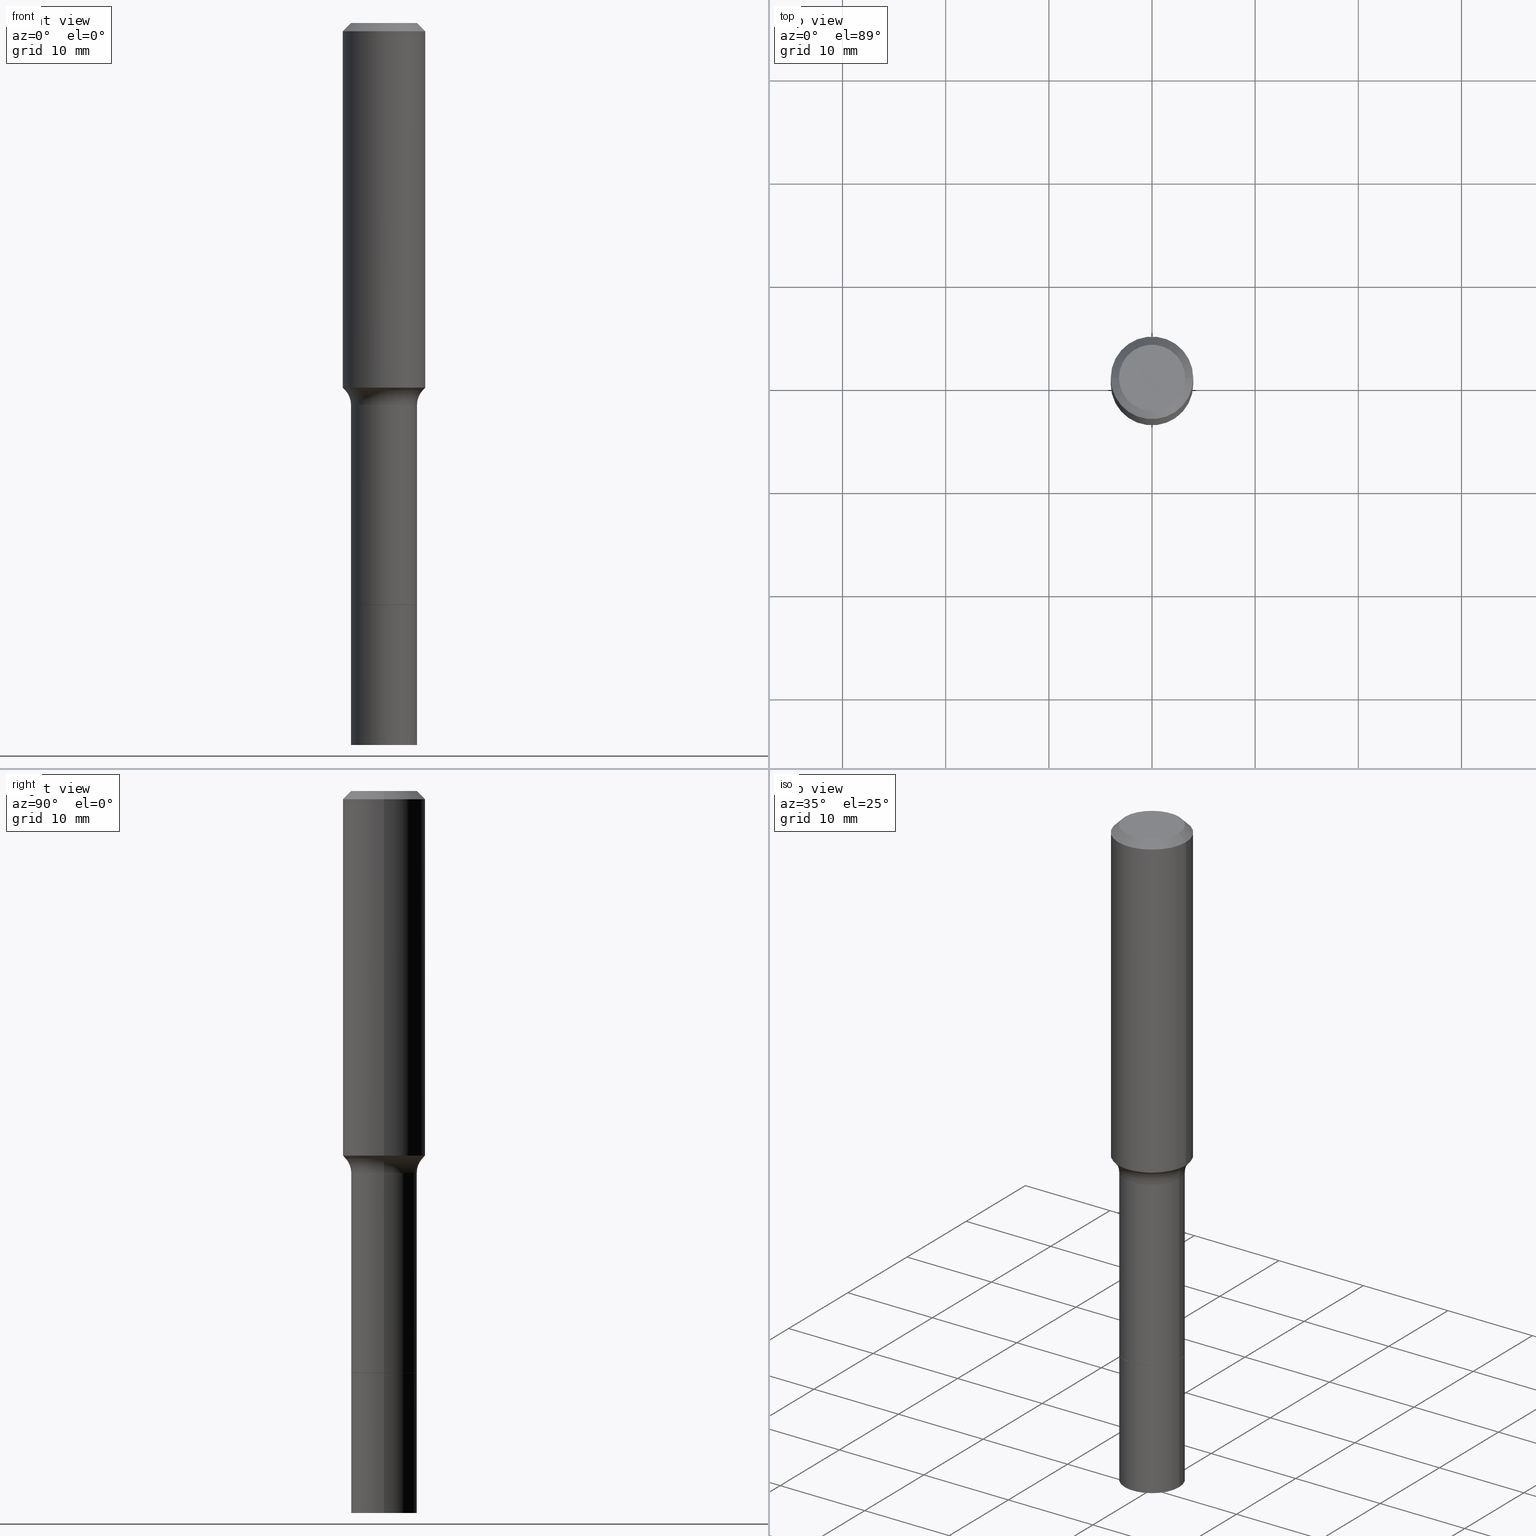
[diagram: canonical four-view strip — front | top / right | iso, engineering-drawing reading convention]
A machine part, canonical four-view strip (front | top / right | iso — engineering-drawing reading convention). The complete STEP part file that produces these views, byte-faithful:
ISO-10303-21;
HEADER;
FILE_DESCRIPTION (( 'STEP AP203' ),
    '1' );
FILE_NAME ('67110.STEP',
    '2025-04-01T15:28:23',
    ( '' ),
    ( '' ),
    'SwSTEP 2.0',
    'SolidWorks 2024',
    '' );
FILE_SCHEMA (( 'CONFIG_CONTROL_DESIGN' ));
ENDSEC;

DATA;
#1 = AXIS2_PLACEMENT_3D ( 'NONE', #72, #98, #418 ) ;
#2 = EDGE_LOOP ( 'NONE', ( #512, #404, #44, #168 ) ) ;
#3 = FACE_OUTER_BOUND ( 'NONE', #315, .T. ) ;
#4 = DIRECTION ( 'NONE',  ( 1.000000000000000000, -6.982962677686265922E-15, 4.876176775795935793E-29 ) ) ;
#5 = CIRCLE ( 'NONE', #122, 0.1474917038704662842 ) ;
#6 = CARTESIAN_POINT ( 'NONE',  ( -0.1260000000000000009, 9.348441284752484904E-16, 3.860086710906110326E-18 ) ) ;
#7 = CIRCLE ( 'NONE', #294, 0.1575000000000001676 ) ;
#8 = ADVANCED_FACE ( 'NONE', ( #338 ), #366, .T. ) ;
#9 = FACE_OUTER_BOUND ( 'NONE', #388, .T. ) ;
#10 = DIRECTION ( 'NONE',  ( 1.000000000000000000, -6.982962677686261977E-15, 0.000000000000000000 ) ) ;
#11 = ORGANIZATION ( 'UNSPECIFIED', 'UNSPECIFIED', '' ) ;
#12 = VERTEX_POINT ( 'NONE', #445 ) ;
#13 = DIRECTION ( 'NONE',  ( 1.000000000000000000, -6.982962677686265922E-15, 0.000000000000000000 ) ) ;
#14 = CARTESIAN_POINT ( 'NONE',  ( 0.000000000000000000, 0.000000000000000000, 0.000000000000000000 ) ) ;
#15 = APPROVAL_PERSON_ORGANIZATION ( #150, #507, #415 ) ;
#16 = APPROVAL ( #335, 'UNSPECIFIED' ) ;
#17 = CARTESIAN_POINT ( 'NONE',  ( 0.1259999999999999454, -8.798532973884691559E-16, 6.143982737502876745E-30 ) ) ;
#18 = DIRECTION ( 'NONE',  ( 1.000000000000000000, -6.982962677686261977E-15, 0.000000000000000000 ) ) ;
#19 = CLOSED_SHELL ( 'NONE', ( #296, #476, #371, #378, #191, #54, #506, #495, #465, #289, #439, #269, #143, #416 ) ) ;
#20 = DATE_TIME_ROLE ( 'creation_date' ) ;
#21 = AXIS2_PLACEMENT_3D ( 'NONE', #496, #67, #18 ) ;
#22 = DIRECTION ( 'NONE',  ( -1.000000000000000000, 6.982962677686265922E-15, -4.876176775795935793E-29 ) ) ;
#23 = DATE_AND_TIME ( #147, #274 ) ;
#24 = LOCAL_TIME ( 11, 28, 23.00000000000000000, #154 ) ;
#25 = DIRECTION ( 'NONE',  ( 1.000000000000000000, -6.982962677686267499E-15, 0.000000000000000000 ) ) ;
#26 =( NAMED_UNIT ( * ) SI_UNIT ( $, .STERADIAN. ) SOLID_ANGLE_UNIT ( ) );
#27 = CYLINDRICAL_SURFACE ( 'NONE', #162, 0.1259999999999999454 ) ;
#28 = CARTESIAN_POINT ( 'NONE',  ( 5.431141671656569525E-29, -7.754230905436741419E-15, -2.220899999999999874 ) ) ;
#29 = APPLICATION_PROTOCOL_DEFINITION ( 'international standard', 'config_control_design', 1994, #317 ) ;
#30 = EDGE_CURVE ( 'NONE', #169, #203, #278, .T. ) ;
#31 = DESIGN_CONTEXT ( 'detailed design', #317, 'design' ) ;
#32 = CIRCLE ( 'NONE', #461, 0.1260000000000001674 ) ;
#33 = APPROVAL_DATE_TIME ( #77, #507 ) ;
#34 = VECTOR ( 'NONE', #276, 39.37007874015748143 ) ;
#35 = CARTESIAN_POINT ( 'NONE',  ( 3.429379046498945031E-29, -4.896244398778191776E-15, -1.402340131195000117 ) ) ;
#36 = CONICAL_SURFACE ( 'NONE', #221, 0.1255000000000000004, 0.7853981633975507526 ) ;
#37 =( LENGTH_UNIT ( ) NAMED_UNIT ( * ) SI_UNIT ( $, .METRE. ) );
#38 = CC_DESIGN_DATE_AND_TIME_ASSIGNMENT ( #308, #190, ( #66 ) ) ;
#39 = FACE_OUTER_BOUND ( 'NONE', #517, .T. ) ;
#40 = APPLICATION_CONTEXT ( 'configuration controlled 3d designs of mechanical parts and assemblies' ) ;
#41 = AXIS2_PLACEMENT_3D ( 'NONE', #52, #217, #396 ) ;
#42 = ORIENTED_EDGE ( 'NONE', *, *, #196, .F. ) ;
#43 = VERTEX_POINT ( 'NONE', #248 ) ;
#44 = ORIENTED_EDGE ( 'NONE', *, *, #86, .T. ) ;
#45 = DIRECTION ( 'NONE',  ( -1.000000000000000000, 6.982962677686265922E-15, -4.876176775795935793E-29 ) ) ;
#46 = EDGE_CURVE ( 'NONE', #237, #245, #100, .T. ) ;
#47 = AXIS2_PLACEMENT_3D ( 'NONE', #94, #214, #4 ) ;
#48 = CIRCLE ( 'NONE', #231, 0.07999999999999993228 ) ;
#49 = EDGE_LOOP ( 'NONE', ( #355, #262 ) ) ;
#50 = DIRECTION ( 'NONE',  ( 1.000000000000000000, -6.982962677686262766E-15, 0.000000000000000000 ) ) ;
#51 = ORIENTED_EDGE ( 'NONE', *, *, #234, .T. ) ;
#52 = CARTESIAN_POINT ( 'NONE',  ( 5.431141671656569525E-29, -7.754230905436741419E-15, -2.220899999999999874 ) ) ;
#53 = CC_DESIGN_APPROVAL ( #312, ( #151 ) ) ;
#54 = ADVANCED_FACE ( 'NONE', ( #9 ), #295, .T. ) ;
#55 = CARTESIAN_POINT ( 'NONE',  ( 5.431141671656569525E-29, -7.754230905436741419E-15, -2.220899999999999874 ) ) ;
#56 = DIRECTION ( 'NONE',  ( -6.982962677686266711E-15, -1.000000000000000000, 3.491481338843145583E-15 ) ) ;
#57 = ORIENTED_EDGE ( 'NONE', *, *, #473, .T. ) ;
#58 = DIRECTION ( 'NONE',  ( -2.445468806185136877E-29, 3.491481338843145188E-15, 1.000000000000000000 ) ) ;
#59 = MANIFOLD_SOLID_BREP ( 'Body-Move/Copy2[1]', #459 ) ;
#60 = EDGE_LOOP ( 'NONE', ( #477, #501, #435, #177 ) ) ;
#61 = CARTESIAN_POINT ( 'NONE',  ( -0.1260000000000000009, -5.524328316606223241E-15, -2.220399999999999707 ) ) ;
#62 = EDGE_CURVE ( 'NONE', #380, #238, #107, .T. ) ;
#63 = ORIENTED_EDGE ( 'NONE', *, *, #486, .F. ) ;
#64 = CARTESIAN_POINT ( 'NONE',  ( -0.2059999999999999054, -3.623021126894772153E-15, -1.456899999999999862 ) ) ;
#65 = CALENDAR_DATE ( 2025, 1, 4 ) ;
#66 = SECURITY_CLASSIFICATION ( '', '', #260 ) ;
#67 = DIRECTION ( 'NONE',  ( -2.445468806185136597E-29, 3.491481338843145583E-15, 1.000000000000000000 ) ) ;
#68 = TOROIDAL_SURFACE ( 'NONE', #327, 0.2059999999999999054, 0.07999999999999993228 ) ;
#69 = DIRECTION ( 'NONE',  ( 0.000000000000000000, 0.000000000000000000, 1.000000000000000000 ) ) ;
#70 = PLANE ( 'NONE',  #306 ) ;
#71 = DATE_AND_TIME ( #266, #314 ) ;
#72 = CARTESIAN_POINT ( 'NONE',  ( 5.429918937253476724E-29, -7.752485164767320704E-15, -2.220399999999999707 ) ) ;
#73 = DIRECTION ( 'NONE',  ( 1.000000000000000000, -6.982962677686269077E-15, 0.000000000000000000 ) ) ;
#74 = EDGE_LOOP ( 'NONE', ( #275, #391, #470, #144 ) ) ;
#75 = APPROVAL_STATUS ( 'not_yet_approved' ) ;
#76 = CC_DESIGN_SECURITY_CLASSIFICATION ( #66, ( #151 ) ) ;
#77 = DATE_AND_TIME ( #205, #90 ) ;
#78 = CC_DESIGN_PERSON_AND_ORGANIZATION_ASSIGNMENT ( #264, #112, ( #209 ) ) ;
#79 = CARTESIAN_POINT ( 'NONE',  ( 0.1260000000000000009, -8.634084202825210772E-15, -2.220899999999999874 ) ) ;
#80 = APPROVAL_PERSON_ORGANIZATION ( #226, #312, #270 ) ;
#81 = FACE_OUTER_BOUND ( 'NONE', #351, .T. ) ;
#82 = ORIENTED_EDGE ( 'NONE', *, *, #170, .T. ) ;
#83 = AXIS2_PLACEMENT_3D ( 'NONE', #444, #359, #50 ) ;
#84 = ORIENTED_EDGE ( 'NONE', *, *, #93, .F. ) ;
#85 = ORIENTED_EDGE ( 'NONE', *, *, #344, .F. ) ;
#86 = EDGE_CURVE ( 'NONE', #164, #12, #148, .T. ) ;
#87 = LINE ( 'NONE', #485, #390 ) ;
#88 = EDGE_LOOP ( 'NONE', ( #329, #480, #463, #287 ) ) ;
#89 = DIRECTION ( 'NONE',  ( -2.445468806185136597E-29, 3.491481338843145583E-15, 1.000000000000000000 ) ) ;
#90 = LOCAL_TIME ( 11, 28, 23.00000000000000000, #158 ) ;
#91 = ORIENTED_EDGE ( 'NONE', *, *, #326, .F. ) ;
#92 = DIRECTION ( 'NONE',  ( 1.000000000000000000, -6.982962677686262766E-15, 0.000000000000000000 ) ) ;
#93 = EDGE_CURVE ( 'NONE', #203, #169, #425, .T. ) ;
#94 = CARTESIAN_POINT ( 'NONE',  ( 5.431141671656569525E-29, -7.754230905436741419E-15, -2.220899999999999874 ) ) ;
#95 = CARTESIAN_POINT ( 'NONE',  ( 0.1474917038704663119, -5.926173462174012285E-15, -1.402340131195000117 ) ) ;
#96 = DIRECTION ( 'NONE',  ( 1.000000000000000000, -6.982962677686265922E-15, 0.000000000000000000 ) ) ;
#97 = CARTESIAN_POINT ( 'NONE',  ( 0.1259999999999998899, -5.966592459949047611E-15, -1.456899999999999862 ) ) ;
#98 = DIRECTION ( 'NONE',  ( -2.445468806185136597E-29, 3.491481338843145583E-15, 1.000000000000000000 ) ) ;
#99 = CARTESIAN_POINT ( 'NONE',  ( 7.703226739483230474E-31, -1.099816621735598031E-16, -0.03150000000000020839 ) ) ;
#100 = CIRCLE ( 'NONE', #386, 0.1474917038704662842 ) ;
#101 = CARTESIAN_POINT ( 'NONE',  ( -0.1575000000000000011, -1.365271913957819338E-15, -0.03150000000000020839 ) ) ;
#102 = CARTESIAN_POINT ( 'NONE',  ( -0.1575000000000001676, -3.739666974564237215E-15, -1.391607547585026916 ) ) ;
#103 = DIRECTION ( 'NONE',  ( -2.445468806185136597E-29, 3.491481338843145583E-15, 1.000000000000000000 ) ) ;
#104 = EDGE_CURVE ( 'NONE', #245, #164, #408, .T. ) ;
#105 = PERSON_AND_ORGANIZATION ( #204, #11 ) ;
#106 = CC_DESIGN_APPROVAL ( #16, ( #209 ) ) ;
#107 = LINE ( 'NONE', #17, #345 ) ;
#108 = FACE_OUTER_BOUND ( 'NONE', #466, .T. ) ;
#109 = PERSON_AND_ORGANIZATION ( #204, #11 ) ;
#110 = DIRECTION ( 'NONE',  ( 1.000000000000000000, -6.982962677686266711E-15, 0.000000000000000000 ) ) ;
#111 = VECTOR ( 'NONE', #362, 39.37007874015748143 ) ;
#112 = PERSON_AND_ORGANIZATION_ROLE ( 'creator' ) ;
#113 = AXIS2_PLACEMENT_3D ( 'NONE', #253, #249, #45 ) ;
#114 = FACE_OUTER_BOUND ( 'NONE', #126, .T. ) ;
#115 = EDGE_CURVE ( 'NONE', #282, #380, #252, .T. ) ;
#116 = FACE_OUTER_BOUND ( 'NONE', #299, .T. ) ;
#117 = ORIENTED_EDGE ( 'NONE', *, *, #426, .F. ) ;
#118 = PERSON_AND_ORGANIZATION ( #204, #11 ) ;
#119 = APPROVAL_ROLE ( '' ) ;
#120 = DIRECTION ( 'NONE',  ( 1.000000000000000000, -6.982962677686265922E-15, 4.883557194083112340E-29 ) ) ;
#121 = EDGE_CURVE ( 'NONE', #401, #322, #186, .T. ) ;
#122 = AXIS2_PLACEMENT_3D ( 'NONE', #35, #340, #499 ) ;
#123 = ORIENTED_EDGE ( 'NONE', *, *, #457, .T. ) ;
#124 = ORIENTED_EDGE ( 'NONE', *, *, #309, .T. ) ;
#125 = CARTESIAN_POINT ( 'NONE',  ( -0.1575000000000000011, 9.898349595620272334E-16, -0.03150000000000020839 ) ) ;
#126 = EDGE_LOOP ( 'NONE', ( #129, #241, #423, #429 ) ) ;
#127 = AXIS2_PLACEMENT_3D ( 'NONE', #219, #292, #331 ) ;
#128 = EDGE_CURVE ( 'NONE', #12, #437, #491, .T. ) ;
#129 = ORIENTED_EDGE ( 'NONE', *, *, #121, .F. ) ;
#130 = SHAPE_DEFINITION_REPRESENTATION ( #200, #250 ) ;
#131 = VECTOR ( 'NONE', #348, 39.37007874015748143 ) ;
#132 = ORIENTED_EDGE ( 'NONE', *, *, #46, .F. ) ;
#133 = CARTESIAN_POINT ( 'NONE',  ( 0.2059999999999999054, -6.525229474163948475E-15, -1.456899999999999862 ) ) ;
#134 = ORIENTED_EDGE ( 'NONE', *, *, #232, .F. ) ;
#135 = DIRECTION ( 'NONE',  ( 1.000000000000000000, -6.982962677686265922E-15, 4.883557194083112340E-29 ) ) ;
#136 = CC_DESIGN_PERSON_AND_ORGANIZATION_ASSIGNMENT ( #109, #502, ( #66 ) ) ;
#137 = DIRECTION ( 'NONE',  ( 1.000000000000000000, -6.982962677686265922E-15, 0.000000000000000000 ) ) ;
#138 = CARTESIAN_POINT ( 'NONE',  ( -4.719860820353096954E-47, 6.738710358733626979E-33, 1.930043355456227940E-18 ) ) ;
#139 = CARTESIAN_POINT ( 'NONE',  ( -9.439721640706193907E-47, 1.347742071746725396E-32, 3.860086710912455880E-18 ) ) ;
#140 = CARTESIAN_POINT ( 'NONE',  ( 6.739467482965618232E-29, -9.622173421717824390E-15, -2.755900000000000016 ) ) ;
#141 = CARTESIAN_POINT ( 'NONE',  ( -0.1259999999999999454, 8.952838470577258461E-16, -6.197858213721179206E-30 ) ) ;
#142 = CARTESIAN_POINT ( 'NONE',  ( 5.431141671656569525E-29, -7.754230905436741419E-15, -2.220899999999999874 ) ) ;
#143 = ADVANCED_FACE ( 'NONE', ( #333 ), #443, .F. ) ;
#144 = ORIENTED_EDGE ( 'NONE', *, *, #202, .F. ) ;
#145 = AXIS2_PLACEMENT_3D ( 'NONE', #55, #222, #96 ) ;
#146 = CARTESIAN_POINT ( 'NONE',  ( 7.703226739483230474E-31, -1.099816621735598031E-16, -0.03150000000000020839 ) ) ;
#147 = CALENDAR_DATE ( 2025, 1, 4 ) ;
#148 = LINE ( 'NONE', #179, #230 ) ;
#149 = TOROIDAL_SURFACE ( 'NONE', #471, 0.2059999999999999054, 0.07999999999999993228 ) ;
#150 = PERSON_AND_ORGANIZATION ( #204, #11 ) ;
#151 = PRODUCT_DEFINITION_FORMATION_WITH_SPECIFIED_SOURCE ( 'ANY', '', #166, .NOT_KNOWN. ) ;
#152 = DIRECTION ( 'NONE',  ( -2.445468806185136597E-29, 3.491481338843145583E-15, 1.000000000000000000 ) ) ;
#153 = VERTEX_POINT ( 'NONE', #102 ) ;
#154 = COORDINATED_UNIVERSAL_TIME_OFFSET ( 5, 0, .BEHIND. ) ;
#155 = CC_DESIGN_PERSON_AND_ORGANIZATION_ASSIGNMENT ( #105, #343, ( #151 ) ) ;
#156 = DIRECTION ( 'NONE',  ( -2.445468806185136597E-29, 3.491481338843145583E-15, 1.000000000000000000 ) ) ;
#157 = CIRCLE ( 'NONE', #41, 0.1255000000000000004 ) ;
#158 = COORDINATED_UNIVERSAL_TIME_OFFSET ( 5, 0, .BEHIND. ) ;
#159 = DIRECTION ( 'NONE',  ( 1.000000000000000000, -6.982962677686265922E-15, 4.876176775795935793E-29 ) ) ;
#160 = FACE_OUTER_BOUND ( 'NONE', #74, .T. ) ;
#161 = CARTESIAN_POINT ( 'NONE',  ( 0.000000000000000000, 0.000000000000000000, 0.000000000000000000 ) ) ;
#162 = AXIS2_PLACEMENT_3D ( 'NONE', #161, #427, #159 ) ;
#163 = CARTESIAN_POINT ( 'NONE',  ( -0.1260000000000000009, -7.792918316519555875E-15, -2.220899999999999874 ) ) ;
#164 = VERTEX_POINT ( 'NONE', #256 ) ;
#165 = LINE ( 'NONE', #310, #268 ) ;
#166 = PRODUCT ( '67110', '67110', '', ( #492 ) ) ;
#167 = AXIS2_PLACEMENT_3D ( 'NONE', #383, #156, #225 ) ;
#168 = ORIENTED_EDGE ( 'NONE', *, *, #309, .F. ) ;
#169 = VERTEX_POINT ( 'NONE', #410 ) ;
#170 = EDGE_CURVE ( 'NONE', #245, #237, #5, .T. ) ;
#171 = VERTEX_POINT ( 'NONE', #163 ) ;
#172 = CONICAL_SURFACE ( 'NONE', #318, 0.1255000000000000004, 0.7853981633975507526 ) ;
#173 = ORIENTED_EDGE ( 'NONE', *, *, #344, .T. ) ;
#174 = DIRECTION ( 'NONE',  ( 1.000000000000000000, -6.982962677686267499E-15, 0.000000000000000000 ) ) ;
#175 = AXIS2_PLACEMENT_3D ( 'NONE', #64, #187, #342 ) ;
#176 = EDGE_CURVE ( 'NONE', #361, #171, #464, .T. ) ;
#177 = ORIENTED_EDGE ( 'NONE', *, *, #273, .F. ) ;
#178 = DIRECTION ( 'NONE',  ( 1.000000000000000000, -6.982962677686267499E-15, 0.000000000000000000 ) ) ;
#179 = CARTESIAN_POINT ( 'NONE',  ( 0.1575000000000000844, -1.099816621735587677E-15, 7.679978421878603638E-30 ) ) ;
#180 = LINE ( 'NONE', #288, #111 ) ;
#181 = DIRECTION ( 'NONE',  ( 0.6819983600624991427, -2.208861293262481719E-15, 0.7313537016191699047 ) ) ;
#182 = DIRECTION ( 'NONE',  ( -2.445468806185136597E-29, 3.491481338843145583E-15, 1.000000000000000000 ) ) ;
#183 = DIRECTION ( 'NONE',  ( -2.445468806185136877E-29, 3.491481338843145188E-15, 1.000000000000000000 ) ) ;
#184 = CARTESIAN_POINT ( 'NONE',  ( 3.403132848070981599E-29, -4.858771783386396397E-15, -1.391607547585026916 ) ) ;
#185 = EDGE_CURVE ( 'NONE', #322, #238, #224, .T. ) ;
#186 = LINE ( 'NONE', #141, #208 ) ;
#187 = DIRECTION ( 'NONE',  ( 7.105427357601001859E-15, 1.000000000000000000, -3.491481338843145583E-15 ) ) ;
#188 = DIRECTION ( 'NONE',  ( 1.000000000000000000, -6.982962677686265922E-15, 4.876281427513067258E-29 ) ) ;
#189 = LINE ( 'NONE', #265, #131 ) ;
#190 = DATE_TIME_ROLE ( 'classification_date' ) ;
#191 = ADVANCED_FACE ( 'NONE', ( #81 ), #68, .F. ) ;
#192 = FACE_OUTER_BOUND ( 'NONE', #88, .T. ) ;
#193 = CARTESIAN_POINT ( 'NONE',  ( 5.431141671656569525E-29, -7.754230905436741419E-15, -2.220899999999999874 ) ) ;
#194 = CYLINDRICAL_SURFACE ( 'NONE', #167, 0.1575000000000000844 ) ;
#195 = DIRECTION ( 'NONE',  ( -2.445468806185136597E-29, 3.491481338843145583E-15, 1.000000000000000000 ) ) ;
#196 = EDGE_CURVE ( 'NONE', #169, #12, #180, .T. ) ;
#197 = APPROVAL_PERSON_ORGANIZATION ( #505, #16, #119 ) ;
#198 = ORIENTED_EDGE ( 'NONE', *, *, #234, .F. ) ;
#199 = CARTESIAN_POINT ( 'NONE',  ( 7.703226739483230474E-31, -1.099816621735598031E-16, -0.03150000000000020839 ) ) ;
#200 = PRODUCT_DEFINITION_SHAPE ( 'NONE', 'NONE',  #209 ) ;
#201 = ORIENTED_EDGE ( 'NONE', *, *, #196, .T. ) ;
#202 = EDGE_CURVE ( 'NONE', #277, #515, #87, .T. ) ;
#203 = VERTEX_POINT ( 'NONE', #6 ) ;
#204 = PERSON ( 'UNSPECIFIED', 'UNSPECIFIED', 'UNSPECIFIED', ('UNSPECIFIED'), ('UNSPECIFIED'), ('UNSPECIFIED') ) ;
#205 = CALENDAR_DATE ( 2025, 1, 4 ) ;
#206 = ORIENTED_EDGE ( 'NONE', *, *, #393, .T. ) ;
#207 = FACE_OUTER_BOUND ( 'NONE', #49, .T. ) ;
#208 = VECTOR ( 'NONE', #406, 39.37007874015748143 ) ;
#209 = PRODUCT_DEFINITION ( 'UNKNOWN', '', #151, #31 ) ;
#210 = ORIENTED_EDGE ( 'NONE', *, *, #115, .T. ) ;
#211 = DIRECTION ( 'NONE',  ( -0.6819983600624991427, 7.399397606724289732E-15, 0.7313537016191699047 ) ) ;
#212 = EDGE_LOOP ( 'NONE', ( #91, #134 ) ) ;
#213 = CARTESIAN_POINT ( 'NONE',  ( -0.1260000000000001674, -7.792918316519555875E-15, -2.755900000000000016 ) ) ;
#214 = DIRECTION ( 'NONE',  ( -2.438088387897960049E-29, 3.491481338843145188E-15, 1.000000000000000000 ) ) ;
#215 = CARTESIAN_POINT ( 'NONE',  ( 5.431141671656569525E-29, -7.754230905436741419E-15, -2.220899999999999874 ) ) ;
#216 = CARTESIAN_POINT ( 'NONE',  ( 3.429379046498945031E-29, -4.896244398778191776E-15, -1.402340131195000117 ) ) ;
#217 = DIRECTION ( 'NONE',  ( -2.445468806185136597E-29, 3.491481338843145583E-15, 1.000000000000000000 ) ) ;
#218 = EDGE_CURVE ( 'NONE', #515, #171, #304, .T. ) ;
#219 = CARTESIAN_POINT ( 'NONE',  ( -9.439721640706193907E-47, 1.347742071746725396E-32, 3.860086710912455880E-18 ) ) ;
#220 = CYLINDRICAL_SURFACE ( 'NONE', #411, 0.1260000000000000842 ) ;
#221 = AXIS2_PLACEMENT_3D ( 'NONE', #28, #103, #25 ) ;
#222 = DIRECTION ( 'NONE',  ( -2.445468806185136597E-29, 3.491481338843145583E-15, 1.000000000000000000 ) ) ;
#223 = CC_DESIGN_PERSON_AND_ORGANIZATION_ASSIGNMENT ( #497, #453, ( #151 ) ) ;
#224 = CIRCLE ( 'NONE', #508, 0.1259999999999998899 ) ;
#225 = DIRECTION ( 'NONE',  ( 1.000000000000000000, -6.982962677686267499E-15, 4.876176775795936353E-29 ) ) ;
#226 = PERSON_AND_ORGANIZATION ( #204, #11 ) ;
#227 = FACE_OUTER_BOUND ( 'NONE', #285, .T. ) ;
#228 = FACE_OUTER_BOUND ( 'NONE', #392, .T. ) ;
#229 = APPLICATION_PROTOCOL_DEFINITION ( 'international standard', 'config_control_design', 1994, #40 ) ;
#230 = VECTOR ( 'NONE', #451, 39.37007874015748143 ) ;
#231 = AXIS2_PLACEMENT_3D ( 'NONE', #133, #56, #364 ) ;
#232 = EDGE_CURVE ( 'NONE', #43, #282, #157, .T. ) ;
#233 = CIRCLE ( 'NONE', #1, 0.1260000000000000009 ) ;
#234 = EDGE_CURVE ( 'NONE', #171, #515, #328, .T. ) ;
#235 = ORIENTED_EDGE ( 'NONE', *, *, #426, .T. ) ;
#236 = AXIS2_PLACEMENT_3D ( 'NONE', #142, #89, #174 ) ;
#237 = VERTEX_POINT ( 'NONE', #446 ) ;
#238 = VERTEX_POINT ( 'NONE', #97 ) ;
#239 = PLANE ( 'NONE',  #113 ) ;
#240 = LOCAL_TIME ( 11, 28, 23.00000000000000000, #413 ) ;
#241 = ORIENTED_EDGE ( 'NONE', *, *, #409, .T. ) ;
#242 = LINE ( 'NONE', #483, #514 ) ;
#243 = VECTOR ( 'NONE', #305, 39.37007874015748143 ) ;
#244 = CIRCLE ( 'NONE', #21, 0.1260000000000001674 ) ;
#245 = VERTEX_POINT ( 'NONE', #95 ) ;
#246 = CARTESIAN_POINT ( 'NONE',  ( -0.1259999999999998899, -5.524328316606224029E-15, -1.456899999999999862 ) ) ;
#247 = AXIS2_PLACEMENT_3D ( 'NONE', #334, #379, #300 ) ;
#248 = CARTESIAN_POINT ( 'NONE',  ( -0.1255000000000000004, -6.859850544883704876E-15, -2.220899999999999874 ) ) ;
#249 = DIRECTION ( 'NONE',  ( 2.438088387897960049E-29, -3.491481338843145188E-15, -1.000000000000000000 ) ) ;
#250 = ADVANCED_BREP_SHAPE_REPRESENTATION ( '67110', ( #59, #394, #258 ), #498 ) ;
#251 = EDGE_CURVE ( 'NONE', #277, #361, #32, .T. ) ;
#252 = LINE ( 'NONE', #290, #433 ) ;
#253 = CARTESIAN_POINT ( 'NONE',  ( 6.739467482965618232E-29, -9.622173421717824390E-15, -2.755900000000000016 ) ) ;
#254 = DIRECTION ( 'NONE',  ( -2.445468806185136597E-29, 3.491481338843145583E-15, 1.000000000000000000 ) ) ;
#255 = CARTESIAN_POINT ( 'NONE',  ( 3.562803503731125923E-29, -5.086739162560578258E-15, -1.456899999999999862 ) ) ;
#256 = CARTESIAN_POINT ( 'NONE',  ( 0.1575000000000001676, -5.958588405121984666E-15, -1.391607547585026916 ) ) ;
#257 = FACE_OUTER_BOUND ( 'NONE', #313, .T. ) ;
#258 = AXIS2_PLACEMENT_3D ( 'NONE', #14, #69, #462 ) ;
#259 = CONICAL_SURFACE ( 'NONE', #321, 0.1474917038704662842, 0.7504915783575625277 ) ;
#260 = SECURITY_CLASSIFICATION_LEVEL ( 'unclassified' ) ;
#261 = ADVANCED_FACE ( 'NONE', ( #207 ), #239, .T. ) ;
#262 = ORIENTED_EDGE ( 'NONE', *, *, #393, .F. ) ;
#263 = DIRECTION ( 'NONE',  ( 2.438088387897960049E-29, -3.491481338843145188E-15, -1.000000000000000000 ) ) ;
#264 = PERSON_AND_ORGANIZATION ( #204, #11 ) ;
#265 = CARTESIAN_POINT ( 'NONE',  ( -0.1255000000000000004, -6.862499772057815288E-15, -2.220899999999999874 ) ) ;
#266 = CALENDAR_DATE ( 2025, 1, 4 ) ;
#267 =( NAMED_UNIT ( * ) PLANE_ANGLE_UNIT ( ) SI_UNIT ( $, .RADIAN. ) );
#268 = VECTOR ( 'NONE', #467, 39.37007874015748143 ) ;
#269 = ADVANCED_FACE ( 'NONE', ( #3 ), #330, .F. ) ;
#270 = APPROVAL_ROLE ( '' ) ;
#271 = CARTESIAN_POINT ( 'NONE',  ( -0.1260000000000000842, -6.858947058379013600E-15, -2.220899999999999874 ) ) ;
#272 = AXIS2_PLACEMENT_3D ( 'NONE', #99, #254, #137 ) ;
#273 = EDGE_CURVE ( 'NONE', #153, #164, #347, .T. ) ;
#274 = LOCAL_TIME ( 11, 28, 23.00000000000000000, #385 ) ;
#275 = ORIENTED_EDGE ( 'NONE', *, *, #251, .T. ) ;
#276 = DIRECTION ( 'NONE',  ( -0.7071067811865450192, 2.468850131082230634E-15, -0.7071067811865500152 ) ) ;
#277 = VERTEX_POINT ( 'NONE', #516 ) ;
#278 = CIRCLE ( 'NONE', #127, 0.1260000000000000009 ) ;
#279 = AXIS2_PLACEMENT_3D ( 'NONE', #323, #356, #488 ) ;
#280 = EDGE_LOOP ( 'NONE', ( #500, #206, #509, #198 ) ) ;
#281 = AXIS2_PLACEMENT_3D ( 'NONE', #146, #504, #490 ) ;
#282 = VERTEX_POINT ( 'NONE', #407 ) ;
#283 = CC_DESIGN_PERSON_AND_ORGANIZATION_ASSIGNMENT ( #118, #421, ( #166 ) ) ;
#284 = DIRECTION ( 'NONE',  ( -2.445468806185136597E-29, 3.491481338843145583E-15, 1.000000000000000000 ) ) ;
#285 = EDGE_LOOP ( 'NONE', ( #316, #489, #173, #123 ) ) ;
#286 = DIRECTION ( 'NONE',  ( -2.445468806185136597E-29, 3.491481338843145583E-15, 1.000000000000000000 ) ) ;
#287 = ORIENTED_EDGE ( 'NONE', *, *, #86, .F. ) ;
#288 = CARTESIAN_POINT ( 'NONE',  ( 0.1575000000000000011, -1.190510096822576026E-15, -0.03150000000000020839 ) ) ;
#289 = ADVANCED_FACE ( 'NONE', ( #518 ), #402, .T. ) ;
#290 = CARTESIAN_POINT ( 'NONE',  ( 0.1255000000000000004, -8.630592721486367765E-15, -2.220899999999999874 ) ) ;
#291 = DIRECTION ( 'NONE',  ( -2.445468806185136597E-29, 3.491481338843145583E-15, 1.000000000000000000 ) ) ;
#292 = DIRECTION ( 'NONE',  ( -2.445468806185136597E-29, 3.491481338843145583E-15, 1.000000000000000000 ) ) ;
#293 = DIRECTION ( 'NONE',  ( -1.000000000000000000, 6.982962677686265922E-15, -4.876176775795935793E-29 ) ) ;
#294 = AXIS2_PLACEMENT_3D ( 'NONE', #398, #286, #441 ) ;
#295 = CYLINDRICAL_SURFACE ( 'NONE', #376, 0.1259999999999999454 ) ;
#296 = ADVANCED_FACE ( 'NONE', ( #438 ), #172, .T. ) ;
#297 = CARTESIAN_POINT ( 'NONE',  ( 3.562803503731125923E-29, -5.086739162560578258E-15, -1.456899999999999862 ) ) ;
#298 = APPROVAL_DATE_TIME ( #23, #312 ) ;
#299 = EDGE_LOOP ( 'NONE', ( #353, #51 ) ) ;
#300 = DIRECTION ( 'NONE',  ( 1.000000000000000000, -6.982962677686262766E-15, 0.000000000000000000 ) ) ;
#301 = APPROVAL_STATUS ( 'not_yet_approved' ) ;
#302 = FACE_OUTER_BOUND ( 'NONE', #60, .T. ) ;
#303 = ORIENTED_EDGE ( 'NONE', *, *, #432, .T. ) ;
#304 = CIRCLE ( 'NONE', #83, 0.1260000000000000009 ) ;
#305 = DIRECTION ( 'NONE',  ( -2.445468806185136877E-29, 3.491481338843145188E-15, 1.000000000000000000 ) ) ;
#306 = AXIS2_PLACEMENT_3D ( 'NONE', #193, #263, #22 ) ;
#307 = DIRECTION ( 'NONE',  ( -2.445468806185136597E-29, 3.491481338843145583E-15, 1.000000000000000000 ) ) ;
#308 = DATE_AND_TIME ( #65, #240 ) ;
#309 = EDGE_CURVE ( 'NONE', #437, #12, #493, .T. ) ;
#310 = CARTESIAN_POINT ( 'NONE',  ( -0.1575000000000000844, 1.119104808822158392E-15, -7.747322767151481189E-30 ) ) ;
#311 = ORIENTED_EDGE ( 'NONE', *, *, #104, .F. ) ;
#312 = APPROVAL ( #75, 'UNSPECIFIED' ) ;
#313 = EDGE_LOOP ( 'NONE', ( #82, #372, #472, #311 ) ) ;
#314 = LOCAL_TIME ( 11, 28, 23.00000000000000000, #456 ) ;
#315 = EDGE_LOOP ( 'NONE', ( #436, #319 ) ) ;
#316 = ORIENTED_EDGE ( 'NONE', *, *, #432, .F. ) ;
#317 = APPLICATION_CONTEXT ( 'configuration controlled 3d designs of mechanical parts and assemblies' ) ;
#318 = AXIS2_PLACEMENT_3D ( 'NONE', #332, #284, #178 ) ;
#319 = ORIENTED_EDGE ( 'NONE', *, *, #30, .T. ) ;
#320 = DIRECTION ( 'NONE',  ( -2.445468806185136597E-29, 3.491481338843145583E-15, 1.000000000000000000 ) ) ;
#321 = AXIS2_PLACEMENT_3D ( 'NONE', #452, #458, #110 ) ;
#322 = VERTEX_POINT ( 'NONE', #246 ) ;
#323 = CARTESIAN_POINT ( 'NONE',  ( 7.703226739483230474E-31, -1.099816621735598031E-16, -0.03150000000000020839 ) ) ;
#324 = DIRECTION ( 'NONE',  ( -2.445468806185136597E-29, 3.491481338843145583E-15, 1.000000000000000000 ) ) ;
#325 = CARTESIAN_POINT ( 'NONE',  ( 0.000000000000000000, 0.000000000000000000, 0.000000000000000000 ) ) ;
#326 = EDGE_CURVE ( 'NONE', #282, #43, #450, .T. ) ;
#327 = AXIS2_PLACEMENT_3D ( 'NONE', #255, #370, #135 ) ;
#328 = CIRCLE ( 'NONE', #468, 0.1260000000000000009 ) ;
#329 = ORIENTED_EDGE ( 'NONE', *, *, #360, .T. ) ;
#330 = PLANE ( 'NONE',  #434 ) ;
#331 = DIRECTION ( 'NONE',  ( 1.000000000000000000, -6.982962677686265922E-15, 4.876281427513067258E-29 ) ) ;
#332 = CARTESIAN_POINT ( 'NONE',  ( 5.431141671656569525E-29, -7.754230905436741419E-15, -2.220899999999999874 ) ) ;
#333 = FACE_OUTER_BOUND ( 'NONE', #212, .T. ) ;
#334 = CARTESIAN_POINT ( 'NONE',  ( 5.429918937253476724E-29, -7.752485164767320704E-15, -2.220399999999999707 ) ) ;
#335 = APPROVAL_STATUS ( 'not_yet_approved' ) ;
#336 = UNCERTAINTY_MEASURE_WITH_UNIT (LENGTH_MEASURE( 1.000000000000000082E-05 ), #424, 'distance_accuracy_value', 'NONE');
#337 = CONICAL_SURFACE ( 'NONE', #399, 0.1474917038704662842, 0.7504915783575625277 ) ;
#338 = FACE_OUTER_BOUND ( 'NONE', #280, .T. ) ;
#339 = DATE_AND_TIME ( #375, #24 ) ;
#340 = DIRECTION ( 'NONE',  ( -2.445468806185136597E-29, 3.491481338843145583E-15, 1.000000000000000000 ) ) ;
#341 = DIRECTION ( 'NONE',  ( -2.445468806185136597E-29, 3.491481338843145583E-15, 1.000000000000000000 ) ) ;
#342 = DIRECTION ( 'NONE',  ( -1.000000000000000000, 7.105427357601005014E-15, 0.000000000000000000 ) ) ;
#343 = PERSON_AND_ORGANIZATION_ROLE ( 'creator' ) ;
#344 = EDGE_CURVE ( 'NONE', #245, #238, #48, .T. ) ;
#345 = VECTOR ( 'NONE', #183, 39.37007874015748143 ) ;
#346 = DIRECTION ( 'NONE',  ( -2.445468806185136597E-29, 3.491481338843145583E-15, 1.000000000000000000 ) ) ;
#347 = CIRCLE ( 'NONE', #377, 0.1575000000000001676 ) ;
#348 = DIRECTION ( 'NONE',  ( -0.7071067811866199593, 7.493145998870616062E-15, 0.7071067811864750752 ) ) ;
#349 = ORIENTED_EDGE ( 'NONE', *, *, #62, .F. ) ;
#350 = LENGTH_MEASURE_WITH_UNIT ( LENGTH_MEASURE( 0.02539999999999999897 ), #37 );
#351 = EDGE_LOOP ( 'NONE', ( #132, #303, #440, #85 ) ) ;
#352 = ORIENTED_EDGE ( 'NONE', *, *, #121, .T. ) ;
#353 = ORIENTED_EDGE ( 'NONE', *, *, #218, .T. ) ;
#354 = EDGE_CURVE ( 'NONE', #237, #153, #242, .T. ) ;
#355 = ORIENTED_EDGE ( 'NONE', *, *, #251, .F. ) ;
#356 = DIRECTION ( 'NONE',  ( -2.445468806185136597E-29, 3.491481338843145583E-15, 1.000000000000000000 ) ) ;
#357 = VECTOR ( 'NONE', #181, 39.37007874015748143 ) ;
#358 = ORIENTED_EDGE ( 'NONE', *, *, #473, .F. ) ;
#359 = DIRECTION ( 'NONE',  ( -2.445468806185136597E-29, 3.491481338843145583E-15, 1.000000000000000000 ) ) ;
#360 = EDGE_CURVE ( 'NONE', #164, #153, #7, .T. ) ;
#361 = VERTEX_POINT ( 'NONE', #213 ) ;
#362 = DIRECTION ( 'NONE',  ( 0.7071067811865450192, -7.319954787623246579E-15, -0.7071067811865500152 ) ) ;
#363 = ORIENTED_EDGE ( 'NONE', *, *, #409, .F. ) ;
#364 = DIRECTION ( 'NONE',  ( 1.000000000000000000, -6.982962677686265133E-15, 0.000000000000000000 ) ) ;
#365 = DIMENSIONAL_EXPONENTS ( 1.000000000000000000, 0.000000000000000000, 0.000000000000000000, 0.000000000000000000, 0.000000000000000000, 0.000000000000000000, 0.000000000000000000 ) ;
#366 = CYLINDRICAL_SURFACE ( 'NONE', #145, 0.1260000000000000842 ) ;
#367 = DIRECTION ( 'NONE',  ( 1.000000000000000000, -6.982962677686267499E-15, 4.876176775795936353E-29 ) ) ;
#368 = DIRECTION ( 'NONE',  ( -2.445468806185136597E-29, 3.491481338843145583E-15, 1.000000000000000000 ) ) ;
#369 = CARTESIAN_POINT ( 'NONE',  ( 5.431141671656569525E-29, -7.754230905436741419E-15, -2.220899999999999874 ) ) ;
#370 = DIRECTION ( 'NONE',  ( -2.445468806185136597E-29, 3.491481338843145583E-15, 1.000000000000000000 ) ) ;
#371 = ADVANCED_FACE ( 'NONE', ( #192 ), #194, .T. ) ;
#372 = ORIENTED_EDGE ( 'NONE', *, *, #354, .T. ) ;
#373 = CC_DESIGN_APPROVAL ( #507, ( #66 ) ) ;
#374 = CARTESIAN_POINT ( 'NONE',  ( 3.429379046498945031E-29, -4.896244398778191776E-15, -1.402340131195000117 ) ) ;
#375 = CALENDAR_DATE ( 2025, 1, 4 ) ;
#376 = AXIS2_PLACEMENT_3D ( 'NONE', #454, #368, #484 ) ;
#377 = AXIS2_PLACEMENT_3D ( 'NONE', #184, #291, #481 ) ;
#378 = ADVANCED_FACE ( 'NONE', ( #257 ), #337, .T. ) ;
#379 = DIRECTION ( 'NONE',  ( -2.445468806185136597E-29, 3.491481338843145583E-15, 1.000000000000000000 ) ) ;
#380 = VERTEX_POINT ( 'NONE', #449 ) ;
#381 = APPROVAL_DATE_TIME ( #339, #16 ) ;
#382 = CARTESIAN_POINT ( 'NONE',  ( 3.562803503731125923E-29, -5.086739162560578258E-15, -1.456899999999999862 ) ) ;
#383 = CARTESIAN_POINT ( 'NONE',  ( 0.000000000000000000, 0.000000000000000000, 0.000000000000000000 ) ) ;
#384 = PRODUCT_RELATED_PRODUCT_CATEGORY ( 'detail', '', ( #166 ) ) ;
#385 = COORDINATED_UNIVERSAL_TIME_OFFSET ( 5, 0, .BEHIND. ) ;
#386 = AXIS2_PLACEMENT_3D ( 'NONE', #216, #482, #494 ) ;
#387 = ADVANCED_FACE ( 'NONE', ( #116 ), #70, .F. ) ;
#388 = EDGE_LOOP ( 'NONE', ( #511, #352, #395, #349 ) ) ;
#389 = CONICAL_SURFACE ( 'NONE', #455, 0.1575000000000000011, 0.7853981633974447263 ) ;
#390 = VECTOR ( 'NONE', #58, 39.37007874015748143 ) ;
#391 = ORIENTED_EDGE ( 'NONE', *, *, #176, .T. ) ;
#392 = EDGE_LOOP ( 'NONE', ( #117, #474, #210, #363 ) ) ;
#393 = EDGE_CURVE ( 'NONE', #361, #277, #244, .T. ) ;
#394 = MANIFOLD_SOLID_BREP ( 'Body-Move/Copy2[2]', #19 ) ;
#395 = ORIENTED_EDGE ( 'NONE', *, *, #457, .F. ) ;
#396 = DIRECTION ( 'NONE',  ( 1.000000000000000000, -6.982962677686267499E-15, 0.000000000000000000 ) ) ;
#397 = EDGE_LOOP ( 'NONE', ( #420, #235, #63, #431 ) ) ;
#398 = CARTESIAN_POINT ( 'NONE',  ( 3.403132848070981599E-29, -4.858771783386396397E-15, -1.391607547585026916 ) ) ;
#399 = AXIS2_PLACEMENT_3D ( 'NONE', #374, #307, #412 ) ;
#400 = CC_DESIGN_DATE_AND_TIME_ASSIGNMENT ( #71, #20, ( #209 ) ) ;
#401 = VERTEX_POINT ( 'NONE', #61 ) ;
#402 = CYLINDRICAL_SURFACE ( 'NONE', #503, 0.1575000000000000844 ) ;
#403 = AXIS2_PLACEMENT_3D ( 'NONE', #297, #152, #417 ) ;
#404 = ORIENTED_EDGE ( 'NONE', *, *, #273, .T. ) ;
#405 = DIRECTION ( 'NONE',  ( -2.445468806185136597E-29, 3.491481338843145583E-15, 1.000000000000000000 ) ) ;
#406 = DIRECTION ( 'NONE',  ( -2.445468806185136877E-29, 3.491481338843145188E-15, 1.000000000000000000 ) ) ;
#407 = CARTESIAN_POINT ( 'NONE',  ( 0.1255000000000000004, -8.630592721486367765E-15, -2.220899999999999874 ) ) ;
#408 = LINE ( 'NONE', #487, #357 ) ;
#409 = EDGE_CURVE ( 'NONE', #401, #380, #442, .T. ) ;
#410 = CARTESIAN_POINT ( 'NONE',  ( 0.1260000000000000009, -1.027466422270894443E-15, 3.860086710919124220E-18 ) ) ;
#411 = AXIS2_PLACEMENT_3D ( 'NONE', #369, #341, #13 ) ;
#412 = DIRECTION ( 'NONE',  ( 1.000000000000000000, -6.982962677686266711E-15, 0.000000000000000000 ) ) ;
#413 = COORDINATED_UNIVERSAL_TIME_OFFSET ( 5, 0, .BEHIND. ) ;
#414 = ORIENTED_EDGE ( 'NONE', *, *, #128, .T. ) ;
#415 = APPROVAL_ROLE ( '' ) ;
#416 = ADVANCED_FACE ( 'NONE', ( #228 ), #36, .T. ) ;
#417 = DIRECTION ( 'NONE',  ( 1.000000000000000000, -6.982962677686269077E-15, 0.000000000000000000 ) ) ;
#418 = DIRECTION ( 'NONE',  ( 1.000000000000000000, -6.982962677686262766E-15, 0.000000000000000000 ) ) ;
#419 = CARTESIAN_POINT ( 'NONE',  ( 3.562803503731125923E-29, -5.086739162560578258E-15, -1.456899999999999862 ) ) ;
#420 = ORIENTED_EDGE ( 'NONE', *, *, #326, .T. ) ;
#421 = PERSON_AND_ORGANIZATION_ROLE ( 'design_owner' ) ;
#422 = DIRECTION ( 'NONE',  ( 2.445468806185136597E-29, -3.491481338843145583E-15, -1.000000000000000000 ) ) ;
#423 = ORIENTED_EDGE ( 'NONE', *, *, #62, .T. ) ;
#424 =( CONVERSION_BASED_UNIT ( 'INCH', #350 ) LENGTH_UNIT ( ) NAMED_UNIT ( #365 ) );
#425 = CIRCLE ( 'NONE', #513, 0.1260000000000000009 ) ;
#426 = EDGE_CURVE ( 'NONE', #43, #401, #189, .T. ) ;
#427 = DIRECTION ( 'NONE',  ( -2.445468806185136597E-29, 3.491481338843145583E-15, 1.000000000000000000 ) ) ;
#428 = CIRCLE ( 'NONE', #175, 0.07999999999999993228 ) ;
#429 = ORIENTED_EDGE ( 'NONE', *, *, #185, .F. ) ;
#430 = CONICAL_SURFACE ( 'NONE', #281, 0.1575000000000000011, 0.7853981633974447263 ) ;
#431 = ORIENTED_EDGE ( 'NONE', *, *, #115, .F. ) ;
#432 = EDGE_CURVE ( 'NONE', #237, #322, #428, .T. ) ;
#433 = VECTOR ( 'NONE', #448, 39.37007874015748143 ) ;
#434 = AXIS2_PLACEMENT_3D ( 'NONE', #138, #479, #293 ) ;
#435 = ORIENTED_EDGE ( 'NONE', *, *, #104, .T. ) ;
#436 = ORIENTED_EDGE ( 'NONE', *, *, #93, .T. ) ;
#437 = VERTEX_POINT ( 'NONE', #101 ) ;
#438 = FACE_OUTER_BOUND ( 'NONE', #397, .T. ) ;
#439 = ADVANCED_FACE ( 'NONE', ( #108 ), #430, .T. ) ;
#440 = ORIENTED_EDGE ( 'NONE', *, *, #185, .T. ) ;
#441 = DIRECTION ( 'NONE',  ( 1.000000000000000000, -6.982962677686267499E-15, 0.000000000000000000 ) ) ;
#442 = CIRCLE ( 'NONE', #247, 0.1260000000000000009 ) ;
#443 = PLANE ( 'NONE',  #47 ) ;
#444 = CARTESIAN_POINT ( 'NONE',  ( 5.431141671656569525E-29, -7.754230905436741419E-15, -2.220899999999999874 ) ) ;
#445 = CARTESIAN_POINT ( 'NONE',  ( 0.1575000000000000011, -1.209798283909146741E-15, -0.03150000000000020839 ) ) ;
#446 = CARTESIAN_POINT ( 'NONE',  ( -0.1474917038704663119, -3.848252811077794279E-15, -1.402340131195000117 ) ) ;
#447 = ADVANCED_FACE ( 'NONE', ( #160 ), #220, .T. ) ;
#448 = DIRECTION ( 'NONE',  ( 0.7071067811866199593, -2.468850131083015945E-15, 0.7071067811864750752 ) ) ;
#449 = CARTESIAN_POINT ( 'NONE',  ( 0.1260000000000000009, -8.632338462155790057E-15, -2.220399999999999707 ) ) ;
#450 = CIRCLE ( 'NONE', #236, 0.1255000000000000004 ) ;
#451 = DIRECTION ( 'NONE',  ( -2.445468806185136877E-29, 3.491481338843145188E-15, 1.000000000000000000 ) ) ;
#452 = CARTESIAN_POINT ( 'NONE',  ( 3.429379046498945031E-29, -4.896244398778191776E-15, -1.402340131195000117 ) ) ;
#453 = PERSON_AND_ORGANIZATION_ROLE ( 'design_supplier' ) ;
#454 = CARTESIAN_POINT ( 'NONE',  ( 0.000000000000000000, 0.000000000000000000, 0.000000000000000000 ) ) ;
#455 = AXIS2_PLACEMENT_3D ( 'NONE', #199, #422, #460 ) ;
#456 = COORDINATED_UNIVERSAL_TIME_OFFSET ( 5, 0, .BEHIND. ) ;
#457 = EDGE_CURVE ( 'NONE', #238, #322, #478, .T. ) ;
#458 = DIRECTION ( 'NONE',  ( -2.445468806185136597E-29, 3.491481338843145583E-15, 1.000000000000000000 ) ) ;
#459 = CLOSED_SHELL ( 'NONE', ( #447, #261, #8, #387 ) ) ;
#460 = DIRECTION ( 'NONE',  ( -1.000000000000000000, 6.982962677686265922E-15, 0.000000000000000000 ) ) ;
#461 = AXIS2_PLACEMENT_3D ( 'NONE', #140, #182, #10 ) ;
#462 = DIRECTION ( 'NONE',  ( 1.000000000000000000, 0.000000000000000000, 0.000000000000000000 ) ) ;
#463 = ORIENTED_EDGE ( 'NONE', *, *, #128, .F. ) ;
#464 = LINE ( 'NONE', #271, #243 ) ;
#465 = ADVANCED_FACE ( 'NONE', ( #302 ), #259, .T. ) ;
#466 = EDGE_LOOP ( 'NONE', ( #42, #84, #57, #124 ) ) ;
#467 = DIRECTION ( 'NONE',  ( -2.445468806185136877E-29, 3.491481338843145188E-15, 1.000000000000000000 ) ) ;
#468 = AXIS2_PLACEMENT_3D ( 'NONE', #215, #320, #92 ) ;
#469 = LINE ( 'NONE', #125, #34 ) ;
#470 = ORIENTED_EDGE ( 'NONE', *, *, #218, .F. ) ;
#471 = AXIS2_PLACEMENT_3D ( 'NONE', #382, #195, #120 ) ;
#472 = ORIENTED_EDGE ( 'NONE', *, *, #360, .F. ) ;
#473 = EDGE_CURVE ( 'NONE', #203, #437, #469, .T. ) ;
#474 = ORIENTED_EDGE ( 'NONE', *, *, #232, .T. ) ;
#475 = ORIENTED_EDGE ( 'NONE', *, *, #30, .F. ) ;
#476 = ADVANCED_FACE ( 'NONE', ( #39 ), #389, .T. ) ;
#477 = ORIENTED_EDGE ( 'NONE', *, *, #354, .F. ) ;
#478 = CIRCLE ( 'NONE', #403, 0.1259999999999998899 ) ;
#479 = DIRECTION ( 'NONE',  ( 2.438088387897960049E-29, -3.491481338843145188E-15, -1.000000000000000000 ) ) ;
#480 = ORIENTED_EDGE ( 'NONE', *, *, #510, .T. ) ;
#481 = DIRECTION ( 'NONE',  ( 1.000000000000000000, -6.982962677686267499E-15, 0.000000000000000000 ) ) ;
#482 = DIRECTION ( 'NONE',  ( -2.445468806185136597E-29, 3.491481338843145583E-15, 1.000000000000000000 ) ) ;
#483 = CARTESIAN_POINT ( 'NONE',  ( -0.1474917038704662842, -3.848252811077795068E-15, -1.402340131195000117 ) ) ;
#484 = DIRECTION ( 'NONE',  ( 1.000000000000000000, -6.982962677686265922E-15, 4.876176775795935793E-29 ) ) ;
#485 = CARTESIAN_POINT ( 'NONE',  ( 0.1260000000000000842, -8.634084202825210772E-15, -2.220899999999999874 ) ) ;
#486 = EDGE_CURVE ( 'NONE', #380, #401, #233, .T. ) ;
#487 = CARTESIAN_POINT ( 'NONE',  ( 0.1474917038704662842, -5.926173462174012285E-15, -1.402340131195000117 ) ) ;
#488 = DIRECTION ( 'NONE',  ( 1.000000000000000000, -6.982962677686265922E-15, 0.000000000000000000 ) ) ;
#489 = ORIENTED_EDGE ( 'NONE', *, *, #170, .F. ) ;
#490 = DIRECTION ( 'NONE',  ( -1.000000000000000000, 6.982962677686265922E-15, 0.000000000000000000 ) ) ;
#491 = CIRCLE ( 'NONE', #272, 0.1575000000000000011 ) ;
#492 = MECHANICAL_CONTEXT ( 'NONE', #40, 'mechanical' ) ;
#493 = CIRCLE ( 'NONE', #279, 0.1575000000000000011 ) ;
#494 = DIRECTION ( 'NONE',  ( 1.000000000000000000, -6.982962677686266711E-15, 0.000000000000000000 ) ) ;
#495 = ADVANCED_FACE ( 'NONE', ( #227 ), #149, .F. ) ;
#496 = CARTESIAN_POINT ( 'NONE',  ( 6.739467482965618232E-29, -9.622173421717824390E-15, -2.755900000000000016 ) ) ;
#497 = PERSON_AND_ORGANIZATION ( #204, #11 ) ;
#498 =( GEOMETRIC_REPRESENTATION_CONTEXT ( 3 ) GLOBAL_UNCERTAINTY_ASSIGNED_CONTEXT ( ( #336 ) ) GLOBAL_UNIT_ASSIGNED_CONTEXT ( ( #424, #267, #26 ) ) REPRESENTATION_CONTEXT ( 'NONE', 'WORKASPACE' ) );
#499 = DIRECTION ( 'NONE',  ( 1.000000000000000000, -6.982962677686266711E-15, 0.000000000000000000 ) ) ;
#500 = ORIENTED_EDGE ( 'NONE', *, *, #176, .F. ) ;
#501 = ORIENTED_EDGE ( 'NONE', *, *, #46, .T. ) ;
#502 = PERSON_AND_ORGANIZATION_ROLE ( 'classification_officer' ) ;
#503 = AXIS2_PLACEMENT_3D ( 'NONE', #325, #405, #367 ) ;
#504 = DIRECTION ( 'NONE',  ( 2.445468806185136597E-29, -3.491481338843145583E-15, -1.000000000000000000 ) ) ;
#505 = PERSON_AND_ORGANIZATION ( #204, #11 ) ;
#506 = ADVANCED_FACE ( 'NONE', ( #114 ), #27, .T. ) ;
#507 = APPROVAL ( #301, 'UNSPECIFIED' ) ;
#508 = AXIS2_PLACEMENT_3D ( 'NONE', #419, #346, #73 ) ;
#509 = ORIENTED_EDGE ( 'NONE', *, *, #202, .T. ) ;
#510 = EDGE_CURVE ( 'NONE', #153, #437, #165, .T. ) ;
#511 = ORIENTED_EDGE ( 'NONE', *, *, #486, .T. ) ;
#512 = ORIENTED_EDGE ( 'NONE', *, *, #510, .F. ) ;
#513 = AXIS2_PLACEMENT_3D ( 'NONE', #139, #324, #188 ) ;
#514 = VECTOR ( 'NONE', #211, 39.37007874015748143 ) ;
#515 = VERTEX_POINT ( 'NONE', #79 ) ;
#516 = CARTESIAN_POINT ( 'NONE',  ( 0.1260000000000001674, -1.050202671910629532E-14, -2.755900000000000016 ) ) ;
#517 = EDGE_LOOP ( 'NONE', ( #475, #201, #414, #358 ) ) ;
#518 = FACE_OUTER_BOUND ( 'NONE', #2, .T. ) ;
ENDSEC;
END-ISO-10303-21;
